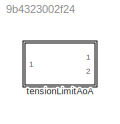
MODEL slx_9b4323002f24
KIND library
CONFIG AbsTol = auto
CONFIG EnableMultiTasking = off
CONFIG FixedStep = auto
CONFIG MaxStep = auto
CONFIG MinStep = auto
CONFIG RelTol = 1e-3
CONFIG SampleTimeConstraint = Unconstrained
CONFIG SolverName = VariableStepAuto
CONFIG StartTime = 0.0
CONFIG StopTime = 10.0
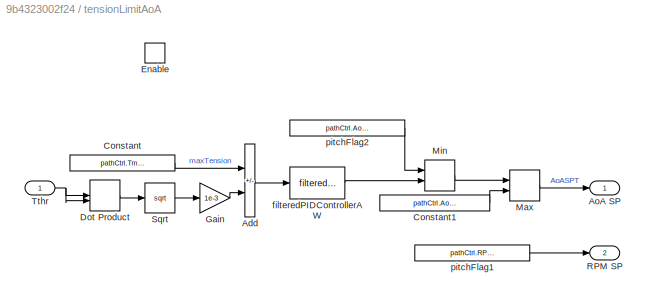
BLOCK [SubSystem] tensionLimitAoA
  Ports = [1, 2, 1]
  RequestExecContextInheritance = off
BLOCK [Sum] tensionLimitAoA/Add
  IconShape = rectangular
  Inputs = +-
  Ports = [2, 1]
BLOCK [Outport] tensionLimitAoA/AoA SP
BLOCK [Constant] tensionLimitAoA/Constant
  Value = pathCtrl.Tmax.Value
BLOCK [Constant] tensionLimitAoA/Constant1
  Value = pathCtrl.AoAmin.Value
BLOCK [DotProduct] tensionLimitAoA/Dot Product
  OutDataTypeStr = Inherit: Inherit via internal rule
BLOCK [EnablePort] tensionLimitAoA/Enable
  Ports = []
BLOCK [Gain] tensionLimitAoA/Gain
  Gain = 1e-3
BLOCK [MinMax] tensionLimitAoA/Max
  Function = max
  Inputs = 2
  Ports = [2, 1]
BLOCK [MinMax] tensionLimitAoA/Min
  Inputs = 2
  Ports = [2, 1]
BLOCK [Outport] tensionLimitAoA/RPM SP
  Port = 2
BLOCK [Sqrt] tensionLimitAoA/Sqrt
BLOCK [Inport] tensionLimitAoA/Tthr
BLOCK [Reference] tensionLimitAoA/filteredPIDControllerAW  REF=filteredPIDControllerAW_ul/filteredPIDControllerAW
  Ports = [1, 1]
  SourceBlock = filteredPIDControllerAW_ul/filteredPIDControllerAW
BLOCK [Constant] tensionLimitAoA/pitchFlag1
  Value = pathCtrl.RPMConst.Value
BLOCK [Constant] tensionLimitAoA/pitchFlag2
  Value = pathCtrl.AoAConst.Value
LINE tensionLimitAoA/Add:1 -> tensionLimitAoA/filteredPIDControllerAW:1
LINE tensionLimitAoA/Constant1:1 -> tensionLimitAoA/Max:2
LINE tensionLimitAoA/Constant:1 -> tensionLimitAoA/Add:1
LINE tensionLimitAoA/Dot Product:1 -> tensionLimitAoA/Sqrt:1
LINE tensionLimitAoA/Gain:1 -> tensionLimitAoA/Add:2
LINE tensionLimitAoA/Max:1 -> tensionLimitAoA/AoA SP:1
LINE tensionLimitAoA/Min:1 -> tensionLimitAoA/Max:1
LINE tensionLimitAoA/Sqrt:1 -> tensionLimitAoA/Gain:1
NET tensionLimitAoA/Tthr:1 -> tensionLimitAoA/Dot Product:1, tensionLimitAoA/Dot Product:2
LINE tensionLimitAoA/filteredPIDControllerAW:1 -> tensionLimitAoA/Min:2
LINE tensionLimitAoA/pitchFlag1:1 -> tensionLimitAoA/RPM SP:1
LINE tensionLimitAoA/pitchFlag2:1 -> tensionLimitAoA/Min:1
note: NET lines group one-source signal fan-out (src -> all destinations, sorted); 1:1 wires keep LINE
